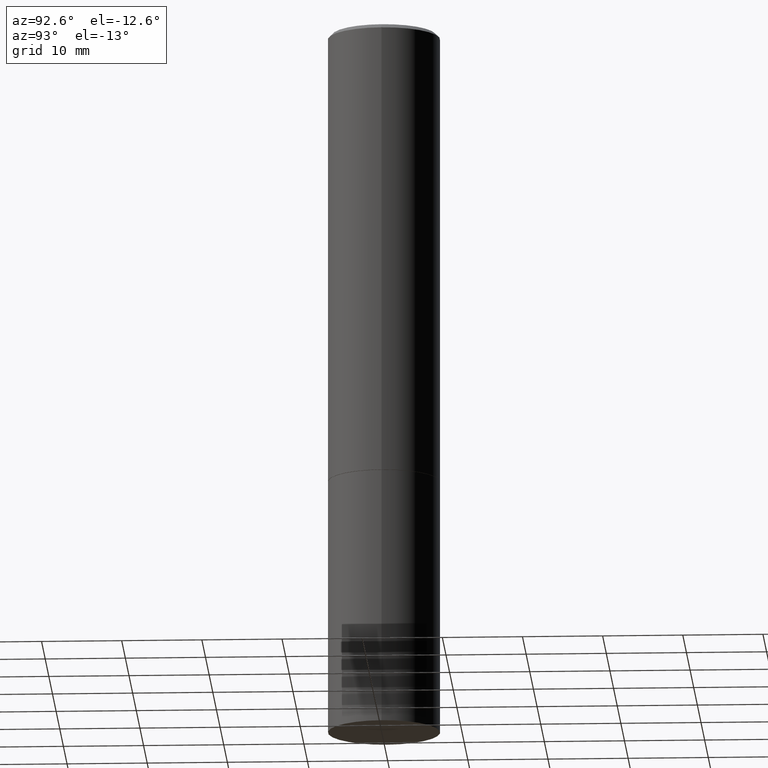
[diagram: clean part render]
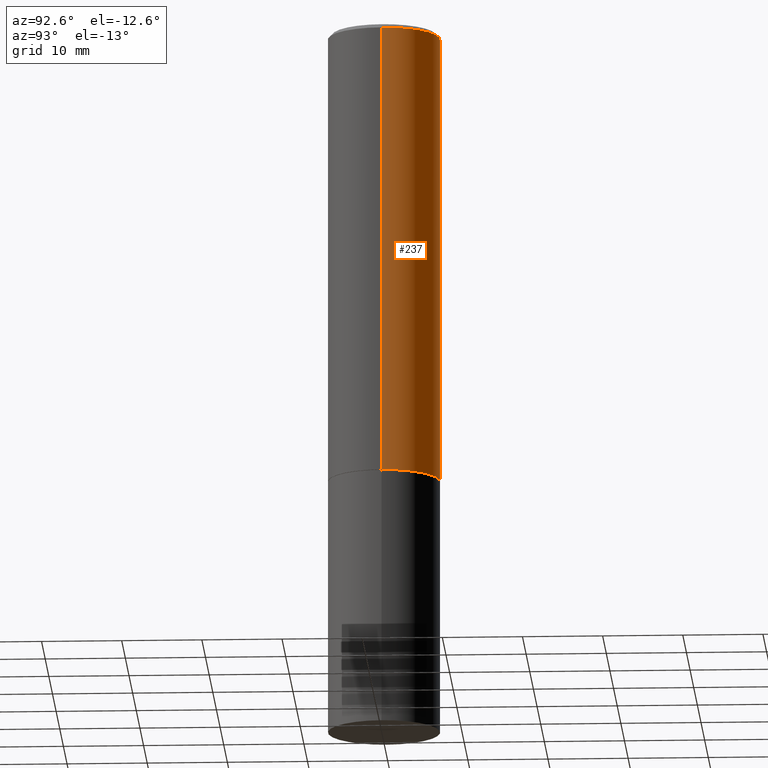
[diagram: same view with one face highlighted and labeled with its STEP entity id]
A machine part, auxiliary view. The second image highlights one B-rep face of the part: STEP entity #237.
In plain terms, the highlighted cylindrical surface (partial cylindrical patch) has radius 7.0002 mm, axis along (-0, 0, 1).
Its self-contained STEP definition (entity closure, byte-faithful):
#27 = ORIENTED_EDGE ( 'NONE', *, *, #222, .T. ) ;
#38 = ORIENTED_EDGE ( 'NONE', *, *, #362, .T. ) ;
#41 = DIRECTION ( 'NONE',  ( 1.000000000000000000, -6.982962677686267499E-15, 4.876176775795935793E-29 ) ) ;
#49 = VERTEX_POINT ( 'NONE', #345 ) ;
#54 = CARTESIAN_POINT ( 'NONE',  ( 4.890937612370288047E-31, -6.982962677686311331E-17, -0.02000000000000005940 ) ) ;
#55 = VECTOR ( 'NONE', #350, 39.37007874015748143 ) ;
#57 = DIRECTION ( 'NONE',  ( -2.445468806185136597E-29, 3.491481338843145583E-15, 1.000000000000000000 ) ) ;
#70 = CARTESIAN_POINT ( 'NONE',  ( 5.485431079153878028E-29, -7.831741791159057755E-15, -2.243099999999999206 ) ) ;
#76 = AXIS2_PLACEMENT_3D ( 'NONE', #54, #57, #177 ) ;
#77 = DIRECTION ( 'NONE',  ( -2.445468806185136597E-29, 3.491481338843145583E-15, 1.000000000000000000 ) ) ;
#96 = CIRCLE ( 'NONE', #76, 0.2755999999999997896 ) ;
#98 = ORIENTED_EDGE ( 'NONE', *, *, #296, .F. ) ;
#103 = CARTESIAN_POINT ( 'NONE',  ( 0.2756000000000000671, -9.756246305129392709E-15, -2.243099999999999206 ) ) ;
#125 = LINE ( 'NONE', #355, #179 ) ;
#145 = ORIENTED_EDGE ( 'NONE', *, *, #192, .F. ) ;
#160 = LINE ( 'NONE', #242, #55 ) ;
#177 = DIRECTION ( 'NONE',  ( 1.000000000000000000, -6.982962677686267499E-15, 0.000000000000000000 ) ) ;
#179 = VECTOR ( 'NONE', #247, 39.37007874015748143 ) ;
#188 = FACE_OUTER_BOUND ( 'NONE', #317, .T. ) ;
#191 = CYLINDRICAL_SURFACE ( 'NONE', #326, 0.2755999999999999006 ) ;
#192 = EDGE_CURVE ( 'NONE', #335, #49, #125, .T. ) ;
#222 = EDGE_CURVE ( 'NONE', #233, #262, #160, .T. ) ;
#233 = VERTEX_POINT ( 'NONE', #352 ) ;
#237 = ADVANCED_FACE ( 'NONE', ( #188 ), #191, .T. ) ;
#242 = CARTESIAN_POINT ( 'NONE',  ( -0.2755999999999999006, 1.958255779754835406E-15, -1.355658510874251446E-29 ) ) ;
#245 = DIRECTION ( 'NONE',  ( 1.000000000000000000, -6.982962677686264344E-15, 0.000000000000000000 ) ) ;
#247 = DIRECTION ( 'NONE',  ( -2.445468806185136877E-29, 3.491481338843145188E-15, 1.000000000000000000 ) ) ;
#248 = CARTESIAN_POINT ( 'NONE',  ( 0.000000000000000000, 0.000000000000000000, 0.000000000000000000 ) ) ;
#262 = VERTEX_POINT ( 'NONE', #304 ) ;
#274 = DIRECTION ( 'NONE',  ( -2.445468806185136597E-29, 3.491481338843145583E-15, 1.000000000000000000 ) ) ;
#296 = EDGE_CURVE ( 'NONE', #49, #262, #96, .T. ) ;
#298 = AXIS2_PLACEMENT_3D ( 'NONE', #70, #274, #245 ) ;
#304 = CARTESIAN_POINT ( 'NONE',  ( -0.2755999999999997896, 1.854674887193470472E-15, -0.02000000000000005940 ) ) ;
#317 = EDGE_LOOP ( 'NONE', ( #38, #27, #98, #145 ) ) ;
#326 = AXIS2_PLACEMENT_3D ( 'NONE', #248, #77, #41 ) ;
#335 = VERTEX_POINT ( 'NONE', #103 ) ;
#343 = CIRCLE ( 'NONE', #298, 0.2756000000000000671 ) ;
#345 = CARTESIAN_POINT ( 'NONE',  ( 0.2755999999999997896, -1.960582874962695828E-15, -0.02000000000000005940 ) ) ;
#350 = DIRECTION ( 'NONE',  ( -2.445468806185136877E-29, 3.491481338843145188E-15, 1.000000000000000000 ) ) ;
#352 = CARTESIAN_POINT ( 'NONE',  ( -0.2756000000000000671, -1.992529929213121965E-15, -2.243099999999999206 ) ) ;
#355 = CARTESIAN_POINT ( 'NONE',  ( 0.2755999999999999006, -1.924504513970334560E-15, 1.343874319409359427E-29 ) ) ;
#362 = EDGE_CURVE ( 'NONE', #335, #233, #343, .T. ) ;